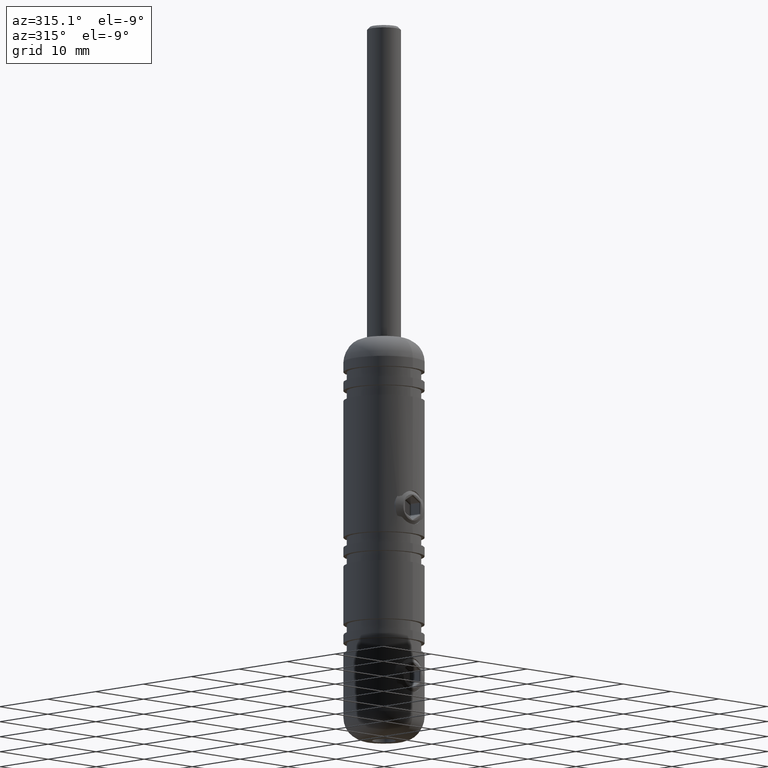
[diagram: clean part render]
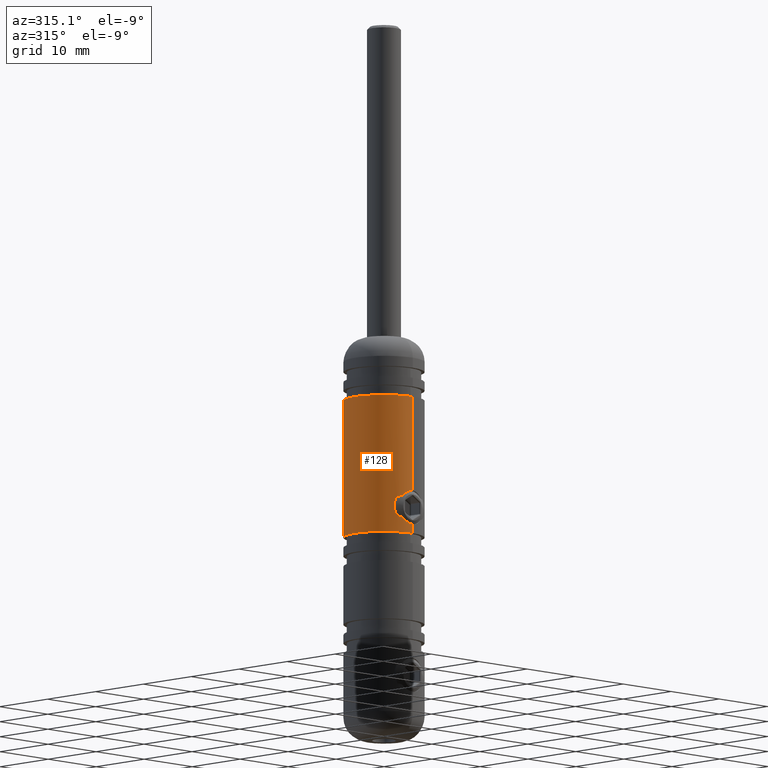
[diagram: same view with one face highlighted and labeled with its STEP entity id]
A machine part, auxiliary view. The second image highlights one B-rep face of the part: STEP entity #128.
In plain terms, the highlighted cylindrical surface (partial cylindrical patch) has radius 6 mm, axis along (0, 0, 1).
Its self-contained STEP definition (entity closure, byte-faithful):
#128 = ADVANCED_FACE ( 'NONE', ( #3688 ), #9369, .T. ) ;
#185 = VERTEX_POINT ( 'NONE', #14910 ) ;
#551 = DIRECTION ( 'NONE',  ( -0.0000000000000000000, 6.241551396031028600E-017, 1.000000000000000000 ) ) ;
#680 = LINE ( 'NONE', #16998, #1739 ) ;
#776 = DIRECTION ( 'NONE',  ( -0.0000000000000000000, 6.241551396031028600E-017, 1.000000000000000000 ) ) ;
#901 = VERTEX_POINT ( 'NONE', #10300 ) ;
#1063 = CARTESIAN_POINT ( 'NONE',  ( -2.166361182966828600, -5.596081245774383800, 5.408215165936124600 ) ) ;
#1669 = AXIS2_PLACEMENT_3D ( 'NONE', #9212, #14683, #12378 ) ;
#1739 = VECTOR ( 'NONE', #14258, 1000.000000000000000 ) ;
#1931 = VERTEX_POINT ( 'NONE', #7787 ) ;
#2160 = CARTESIAN_POINT ( 'NONE',  ( -0.3313286651165028300, -5.993025678387376800, 1.666609448343191500 ) ) ;
#2465 = VERTEX_POINT ( 'NONE', #4381 ) ;
#2522 = CARTESIAN_POINT ( 'NONE',  ( -1.652909006526313000, -5.769071837164838200, 6.032548781030476100 ) ) ;
#2799 = CARTESIAN_POINT ( 'NONE',  ( 0.0000000000000000000, -5.804642798308857600E-016, 20.69999999999999600 ) ) ;
#3505 = CARTESIAN_POINT ( 'NONE',  ( -1.258442380232151800, -5.868189014291105300, 1.983703495810522200 ) ) ;
#3688 = FACE_OUTER_BOUND ( 'NONE', #11296, .T. ) ;
#3793 = CARTESIAN_POINT ( 'NONE',  ( -0.6621311939231098200, -5.971116335839142600, 6.582602729024013200 ) ) ;
#4381 = CARTESIAN_POINT ( 'NONE',  ( 0.0000000000000000000, -5.999999999999977800, 20.69999999999999600 ) ) ;
#4598 = AXIS2_PLACEMENT_3D ( 'NONE', #2799, #7918, #12209 ) ;
#4792 = VERTEX_POINT ( 'NONE', #10882 ) ;
#5029 = B_SPLINE_CURVE_WITH_KNOTS ( 'NONE', 3,
 ( #8903, #15476, #2160, #11564, #14391, #6386, #3505, #12933, #5170, #14682, #6691, #7921, #16012, #10677, #6630, #11858, #5105, #14565, #6570, #13233, #1063, #15948, #9263, #2522, #11922, #7978, #15895, #3793, #14502, #5228 ),
 .UNSPECIFIED., .F., .F.,
 ( 4, 2, 2, 2, 2, 2, 2, 2, 2, 2, 2, 2, 2, 2, 4 ),
 ( 3.163206545865271600E-020, 0.0004942134665145561200, 0.0009884269330291122400, 0.001482640399543668000, 0.001976853866058224000, 0.002965280799087335600, 0.003459494265601892100, 0.003953707732116448100, 0.004447921198631004500, 0.004942134665145560100, 0.005436348131660115700, 0.005930561598174672100, 0.006424775064689229400, 0.006918988531203785000, 0.007907415464232896200 ),
 .UNSPECIFIED. ) ;
#5105 = CARTESIAN_POINT ( 'NONE',  ( -2.483395613810239300, -5.462051476449260300, 4.481345251360887800 ) ) ;
#5170 = CARTESIAN_POINT ( 'NONE',  ( -1.655142058905327800, -5.768422958052115100, 2.269449569317729200 ) ) ;
#5228 = CARTESIAN_POINT ( 'NONE',  ( -1.028502964275223300E-020, -5.999999999999979600, 6.649999999999996800 ) ) ;
#5930 = EDGE_CURVE ( 'NONE', #901, #17342, #5029, .T. ) ;
#6208 = ORIENTED_EDGE ( 'NONE', *, *, #15617, .T. ) ;
#6386 = CARTESIAN_POINT ( 'NONE',  ( -1.115495851646001200, -5.897379805078865700, 1.906682695246938000 ) ) ;
#6570 = CARTESIAN_POINT ( 'NONE',  ( -2.370510600221101600, -5.512296490036560700, 4.961080357092434700 ) ) ;
#6630 = CARTESIAN_POINT ( 'NONE',  ( -2.499892161112044200, -5.454405485178509300, 3.983124959841533900 ) ) ;
#6691 = CARTESIAN_POINT ( 'NONE',  ( -2.181708341974952800, -5.590935308825275600, 2.886746876611114800 ) ) ;
#7787 = CARTESIAN_POINT ( 'NONE',  ( 0.0000000000000000000, -5.999999999999979600, 0.2999999999999916100 ) ) ;
#7918 = DIRECTION ( 'NONE',  ( -0.0000000000000000000, 6.241551396031028600E-017, 1.000000000000000000 ) ) ;
#7921 = CARTESIAN_POINT ( 'NONE',  ( -2.369582593462937800, -5.512683608006659200, 3.336677635524405000 ) ) ;
#7978 = CARTESIAN_POINT ( 'NONE',  ( -1.258252906115198400, -5.868227615580725100, 6.316398083069885600 ) ) ;
#8181 = ORIENTED_EDGE ( 'NONE', *, *, #9929, .T. ) ;
#8892 = DIRECTION ( 'NONE',  ( 0.0000000000000000000, -1.000000000000000000, 6.324512672832133000E-017 ) ) ;
#8903 = CARTESIAN_POINT ( 'NONE',  ( -2.528794934047958200E-018, -5.999999999999979600, 1.649999999999998100 ) ) ;
#9212 = CARTESIAN_POINT ( 'NONE',  ( 0.0000000000000000000, 0.0000000000000000000, 30.00000000000000000 ) ) ;
#9263 = CARTESIAN_POINT ( 'NONE',  ( -1.881449780072503900, -5.698635342894772500, 5.804159853786888600 ) ) ;
#9369 = CYLINDRICAL_SURFACE ( 'NONE', #1669, 5.999999999999977800 ) ;
#9399 = LINE ( 'NONE', #10098, #13139 ) ;
#9778 = EDGE_CURVE ( 'NONE', #4792, #185, #10035, .T. ) ;
#9929 = EDGE_CURVE ( 'NONE', #17342, #2465, #9399, .T. ) ;
#9980 = CARTESIAN_POINT ( 'NONE',  ( 7.347880794884091100E-016, 5.999999999999977800, 30.00000000000000000 ) ) ;
#10035 = LINE ( 'NONE', #9980, #16687 ) ;
#10098 = CARTESIAN_POINT ( 'NONE',  ( 0.0000000000000000000, -5.999999999999977800, 30.00000000000000000 ) ) ;
#10300 = CARTESIAN_POINT ( 'NONE',  ( -2.528794934047958200E-018, -5.999999999999979600, 1.649999999999998100 ) ) ;
#10607 = ORIENTED_EDGE ( 'NONE', *, *, #5930, .T. ) ;
#10677 = CARTESIAN_POINT ( 'NONE',  ( -2.483561809314555300, -5.461976513600078900, 3.819621045319106800 ) ) ;
#10882 = CARTESIAN_POINT ( 'NONE',  ( 7.347880794884091100E-016, 5.999999999999976000, 0.2999999999999908900 ) ) ;
#11042 = CIRCLE ( 'NONE', #16578, 5.999999999999977800 ) ;
#11296 = EDGE_LOOP ( 'NONE', ( #15017, #13880, #6208, #10607, #8181, #15926 ) ) ;
#11564 = CARTESIAN_POINT ( 'NONE',  ( -0.6535671553393455100, -5.966488535110077200, 1.731352177383439900 ) ) ;
#11672 = EDGE_CURVE ( 'NONE', #4792, #1931, #11042, .T. ) ;
#11858 = CARTESIAN_POINT ( 'NONE',  ( -2.500106784638723900, -5.454307112671442000, 4.313628119896180600 ) ) ;
#11922 = CARTESIAN_POINT ( 'NONE',  ( -1.528475880810603800, -5.803710641115032800, 6.135004411042070100 ) ) ;
#12209 = DIRECTION ( 'NONE',  ( 0.0000000000000000000, -1.000000000000000000, 0.0000000000000000000 ) ) ;
#12378 = DIRECTION ( 'NONE',  ( 0.0000000000000000000, -1.000000000000000000, 0.0000000000000000000 ) ) ;
#12933 = CARTESIAN_POINT ( 'NONE',  ( -1.528829007836515200, -5.803619680562190000, 2.165258295589692800 ) ) ;
#13139 = VECTOR ( 'NONE', #776, 1000.000000000000000 ) ;
#13233 = CARTESIAN_POINT ( 'NONE',  ( -2.243493183772681000, -5.565201832296428300, 5.265307215877004200 ) ) ;
#13663 = CIRCLE ( 'NONE', #4598, 5.999999999999976900 ) ;
#13880 = ORIENTED_EDGE ( 'NONE', *, *, #11672, .T. ) ;
#14258 = DIRECTION ( 'NONE',  ( -0.0000000000000000000, 6.241551396031028600E-017, 1.000000000000000000 ) ) ;
#14391 = CARTESIAN_POINT ( 'NONE',  ( -0.8134068127896112400, -5.946577916524674400, 1.780364398952567300 ) ) ;
#14502 = CARTESIAN_POINT ( 'NONE',  ( -0.3294735782554643100, -5.999999999999981300, 6.649999999999999500 ) ) ;
#14565 = CARTESIAN_POINT ( 'NONE',  ( -2.418593444814171300, -5.491053255503482300, 4.803795991876107500 ) ) ;
#14682 = CARTESIAN_POINT ( 'NONE',  ( -1.996726160520224700, -5.663027394641064300, 2.611512018285254900 ) ) ;
#14683 = DIRECTION ( 'NONE',  ( -0.0000000000000000000, 6.241551396031028600E-017, 1.000000000000000000 ) ) ;
#14837 = EDGE_CURVE ( 'NONE', #185, #2465, #13663, .T. ) ;
#14910 = CARTESIAN_POINT ( 'NONE',  ( 7.347880794884091100E-016, 5.999999999999976000, 20.69999999999999600 ) ) ;
#15017 = ORIENTED_EDGE ( 'NONE', *, *, #9778, .F. ) ;
#15476 = CARTESIAN_POINT ( 'NONE',  ( -0.1672401054569761800, -5.999999999999979600, 1.649999999999998100 ) ) ;
#15617 = EDGE_CURVE ( 'NONE', #1931, #901, #680, .T. ) ;
#15895 = CARTESIAN_POINT ( 'NONE',  ( -1.112789484202404400, -5.897869239595869400, 6.394591945689420200 ) ) ;
#15926 = ORIENTED_EDGE ( 'NONE', *, *, #14837, .F. ) ;
#15948 = CARTESIAN_POINT ( 'NONE',  ( -1.985928082928957200, -5.662626222328940500, 5.677192138629328300 ) ) ;
#16012 = CARTESIAN_POINT ( 'NONE',  ( -2.418590853962363100, -5.491054996713676100, 3.496052146183321600 ) ) ;
#16161 = CARTESIAN_POINT ( 'NONE',  ( -1.028502964275223300E-020, -5.999999999999979600, 6.649999999999996800 ) ) ;
#16578 = AXIS2_PLACEMENT_3D ( 'NONE', #16704, #16646, #8892 ) ;
#16646 = DIRECTION ( 'NONE',  ( -0.0000000000000000000, 6.241551396031028600E-017, 1.000000000000000000 ) ) ;
#16687 = VECTOR ( 'NONE', #551, 1000.000000000000000 ) ;
#16704 = CARTESIAN_POINT ( 'NONE',  ( 0.0000000000000000000, -1.853740764621216100E-015, 0.2999999999999912700 ) ) ;
#16998 = CARTESIAN_POINT ( 'NONE',  ( 0.0000000000000000000, -5.999999999999977800, 30.00000000000000000 ) ) ;
#17342 = VERTEX_POINT ( 'NONE', #16161 ) ;